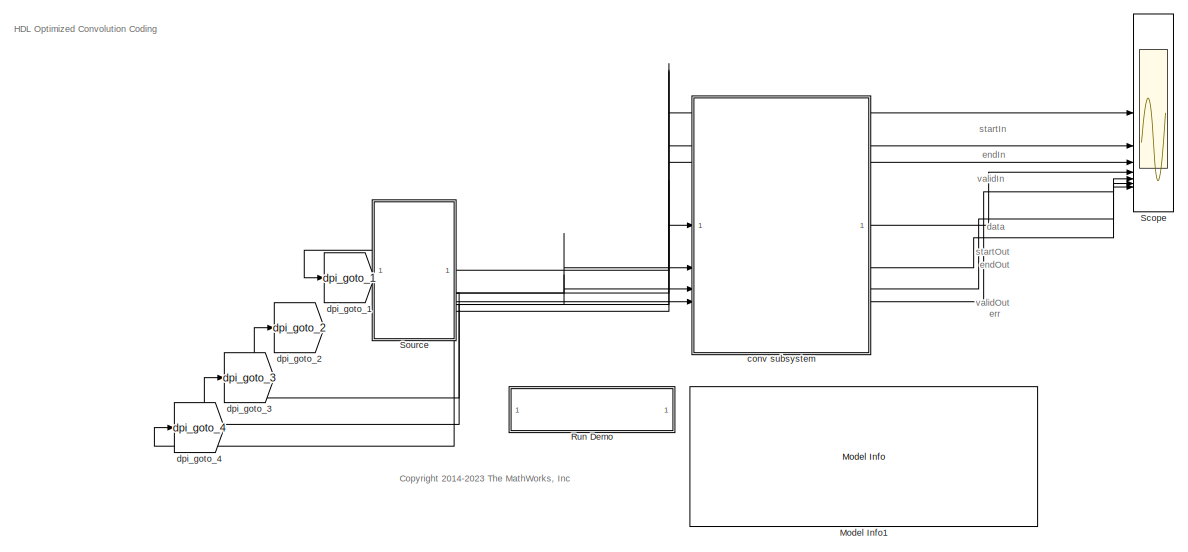
[diagram: root canvas - part 1/2, full width, middle band]
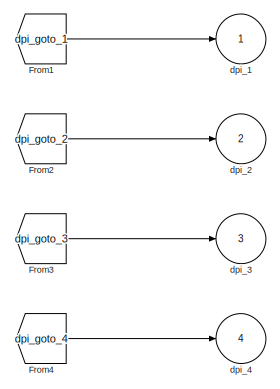
[diagram: root canvas - part 2/2, bottom right region]
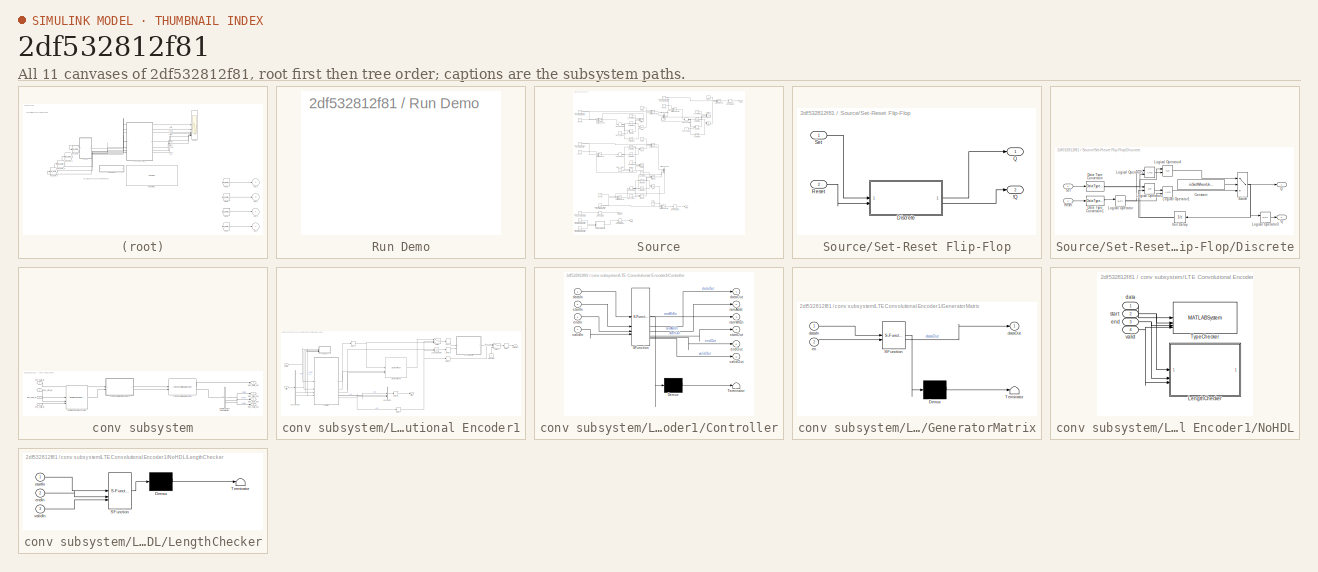
[diagram: thumbnail index - all 11 canvases of the model, root first then tree order]
MODEL slx_2df532812f81
KIND model
CONFIG AbsTol = auto
CONFIG EnableMultiTasking = off
CONFIG FixedStep = auto
CONFIG InitFcn = messagelength = 32;\nperiod =messagelength+672;\nN = 255;\nK = 223;\n\nmessage = [212 186 161 18 242 116 150 48 39 212 136 156 150 227 169 82 179 21 171 253 146 83 7 50 192 98 72 240 25 34 224 145 98 26 193 0];
CONFIG MaxStep = auto
CONFIG MinStep = auto
CONFIG RelTol = 1e-3
CONFIG SampleTimeConstraint = Unconstrained
CONFIG SolverName = VariableStepAuto
CONFIG StartTime = 0.0
CONFIG StopTime = 10.0
BLOCK [From] From1
  GotoTag = dpi_goto_1
  TagVisibility = global
BLOCK [From] From2
  GotoTag = dpi_goto_2
  TagVisibility = global
BLOCK [From] From3
  GotoTag = dpi_goto_3
  TagVisibility = global
BLOCK [From] From4
  GotoTag = dpi_goto_4
  TagVisibility = global
BLOCK [Reference] Model Info1  REF=simulink/Model-Wide
Utilities/Model Info
  SourceBlock = simulink/Model-Wide\nUtilities/Model Info
  SourceType = CMBlock
BLOCK [SubSystem] Run Demo
  OpenFcn = hdldialog(bdroot)
BLOCK [Scope] Scope
  Floating = off
  NumInputPorts = 7
  ScopeSpecificationString = Simulink.scopes.TimeScopeBlockCfg('CurrentConfiguration', extmgr.ConfigurationSet(extmgr.Configuration('Core','General UI',true,'FigureColor',[0.156862745098039 0.156862745098039 0.156862745098039]),extmgr.Configuration('Core','Source UI',true),extmgr.Configuration('Sources','WiredSimulink',true,'DataLoggingSaveFormat','StructureWithTime','DataLoggingDecimation','1'),extmgr.Configuration('Visuals'...<+11172ch>
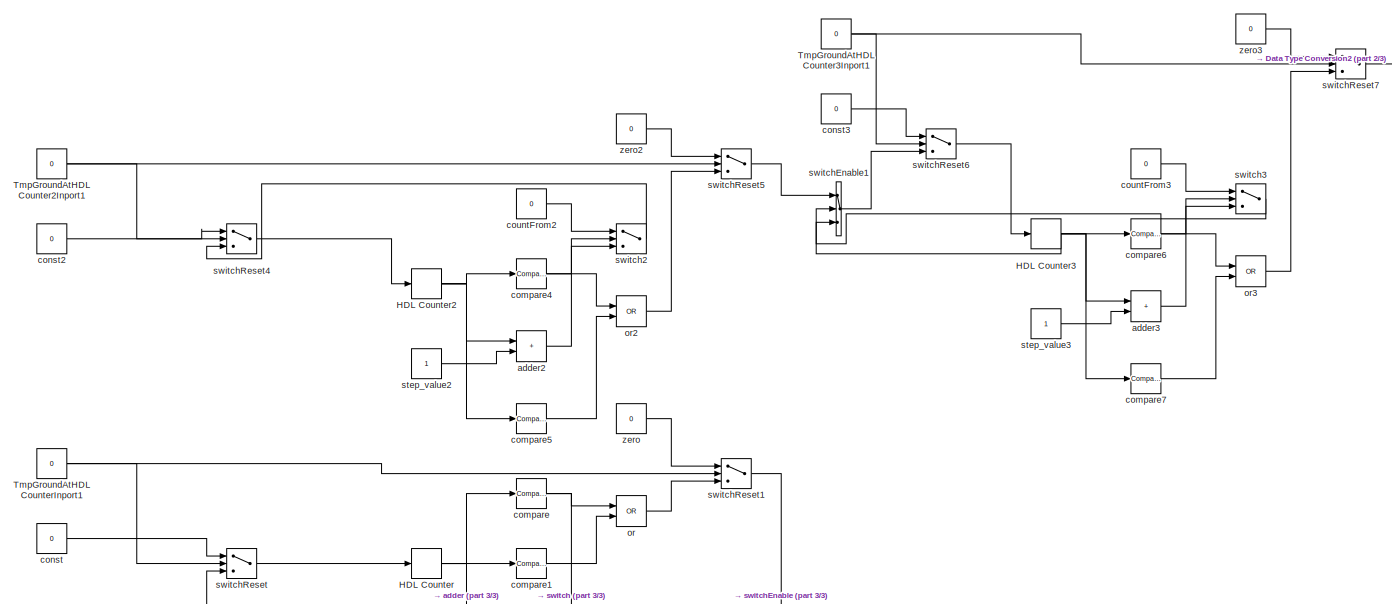
[diagram: Source - part 1/3, full width, top band]
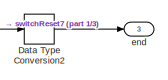
[diagram: Source - part 2/3, top right region]
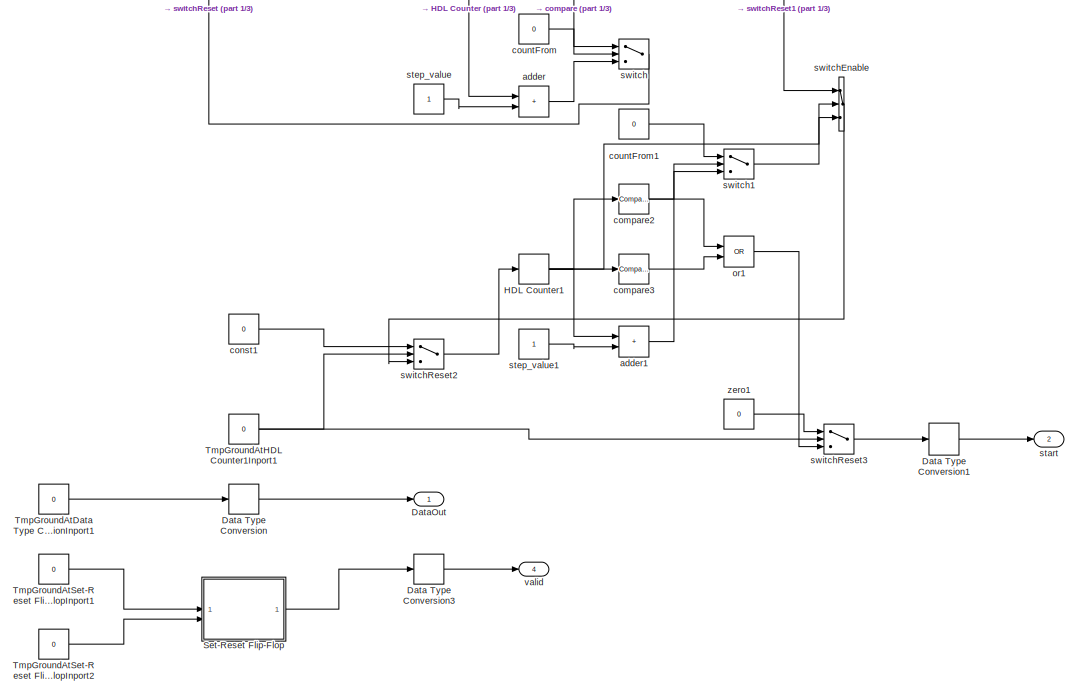
[diagram: Source - part 3/3, bottom center region]
BLOCK [SubSystem] Source
BLOCK [DataTypeConversion] Source/Data Type Conversion
  OutDataTypeStr = fixdt(1,4,-14)
BLOCK [DataTypeConversion] Source/Data Type Conversion1
  OutDataTypeStr = boolean
BLOCK [DataTypeConversion] Source/Data Type Conversion2
  OutDataTypeStr = boolean
BLOCK [DataTypeConversion] Source/Data Type Conversion3
  OutDataTypeStr = boolean
BLOCK [Outport] Source/DataOut
  VectorParamsAs1DForOutWhenUnconnected = off
BLOCK [Delay] Source/HDL Counter
  DelayLength = double(1)
  InitialCondition = 0
  InputPortMap = u0
  SampleTime = 42
BLOCK [Delay] Source/HDL Counter1
  DelayLength = double(1)
  InitialCondition = 0
  InputPortMap = u0
  SampleTime = 42
BLOCK [Delay] Source/HDL Counter2
  DelayLength = double(1)
  InitialCondition = 0
  InputPortMap = u0
  SampleTime = 42
BLOCK [Delay] Source/HDL Counter3
  DelayLength = double(1)
  InitialCondition = 0
  InputPortMap = u0
  SampleTime = 42
BLOCK [SubSystem] Source/Set-Reset Flip-Flop
BLOCK [Outport] Source/Set-Reset Flip-Flop/!Q
  Port = 2
  SampleTime = 42
BLOCK [SubSystem] Source/Set-Reset Flip-Flop/Discrete
BLOCK [Outport] Source/Set-Reset Flip-Flop/Discrete/!Q
  Port = 2
  SampleTime = 42
  VectorParamsAs1DForOutWhenUnconnected = off
BLOCK [Constant] Source/Set-Reset Flip-Flop/Discrete/Constant
  SampleTime = Ts
  Value = isSetWhenUndefinedState
BLOCK [DataTypeConversion] Source/Set-Reset Flip-Flop/Discrete/Data Type Conversion
  OutDataTypeStr = boolean
  RndMeth = Floor
  SaturateOnIntegerOverflow = off
BLOCK [DataTypeConversion] Source/Set-Reset Flip-Flop/Discrete/Data Type Conversion1
  OutDataTypeStr = boolean
  RndMeth = Floor
  SaturateOnIntegerOverflow = off
BLOCK [Logic] Source/Set-Reset Flip-Flop/Discrete/Logical Operator
  AllPortsSameDT = off
  Operator = NOT
  OutDataTypeStr = boolean
BLOCK [Logic] Source/Set-Reset Flip-Flop/Discrete/Logical Operator1
  AllPortsSameDT = off
  OutDataTypeStr = boolean
BLOCK [Logic] Source/Set-Reset Flip-Flop/Discrete/Logical Operator2
  AllPortsSameDT = off
  Operator = OR
  OutDataTypeStr = boolean
BLOCK [Logic] Source/Set-Reset Flip-Flop/Discrete/Logical Operator3
  AllPortsSameDT = off
  Operator = NOT
  OutDataTypeStr = boolean
BLOCK [Logic] Source/Set-Reset Flip-Flop/Discrete/Logical Operator4
  AllPortsSameDT = off
  Operator = OR
  OutDataTypeStr = boolean
BLOCK [Logic] Source/Set-Reset Flip-Flop/Discrete/Logical Operator5
  AllPortsSameDT = off
  OutDataTypeStr = boolean
BLOCK [Outport] Source/Set-Reset Flip-Flop/Discrete/Q
  SampleTime = 42
  VectorParamsAs1DForOutWhenUnconnected = off
BLOCK [Inport] Source/Set-Reset Flip-Flop/Discrete/Reset
  OutDataTypeStr = boolean
  Port = 2
  PortDimensions = 1
BLOCK [Inport] Source/Set-Reset Flip-Flop/Discrete/Set
  OutDataTypeStr = boolean
  PortDimensions = 1
BLOCK [Switch] Source/Set-Reset Flip-Flop/Discrete/Switch
  Criteria = u2 ~= 0
  InputSameDT = off
  SaturateOnIntegerOverflow = off
  Threshold = 1
BLOCK [UnitDelay] Source/Set-Reset Flip-Flop/Discrete/Unit Delay
  HasFrameUpgradeWarning = on
  InitialCondition = Q0
  SampleTime = -1
BLOCK [Outport] Source/Set-Reset Flip-Flop/Q
  SampleTime = 42
BLOCK [Inport] Source/Set-Reset Flip-Flop/Reset
  OutDataTypeStr = boolean
  Port = 2
BLOCK [Inport] Source/Set-Reset Flip-Flop/Set
  OutDataTypeStr = boolean
BLOCK [Constant] Source/TmpGroundAtData Type ConversionInport1
  OutDataTypeStr = fixdt(1, 4, -14)
  Value = 0
  VectorParams1D = off
BLOCK [Constant] Source/TmpGroundAtHDL Counter1Inport1
  OutDataTypeStr = boolean
  Value = 0
  VectorParams1D = off
BLOCK [Constant] Source/TmpGroundAtHDL Counter2Inport1
  OutDataTypeStr = boolean
  Value = 0
  VectorParams1D = off
BLOCK [Constant] Source/TmpGroundAtHDL Counter3Inport1
  OutDataTypeStr = boolean
  Value = 0
  VectorParams1D = off
BLOCK [Constant] Source/TmpGroundAtHDL CounterInport1
  OutDataTypeStr = boolean
  Value = 0
  VectorParams1D = off
BLOCK [Constant] Source/TmpGroundAtSet-Reset Flip-FlopInport1
  OutDataTypeStr = boolean
  Value = 0
  VectorParams1D = off
BLOCK [Constant] Source/TmpGroundAtSet-Reset Flip-FlopInport2
  OutDataTypeStr = boolean
  Value = 0
  VectorParams1D = off
BLOCK [Sum] Source/adder
  AccumDataTypeStr = uint8
  IconShape = rectangular
  OutDataTypeStr = uint8
  SampleTime = 42
BLOCK [Sum] Source/adder1
  AccumDataTypeStr = uint8
  IconShape = rectangular
  OutDataTypeStr = uint8
  SampleTime = 42
BLOCK [Sum] Source/adder2
  AccumDataTypeStr = uint8
  IconShape = rectangular
  OutDataTypeStr = uint8
  SampleTime = 42
BLOCK [Sum] Source/adder3
  AccumDataTypeStr = uint8
  IconShape = rectangular
  OutDataTypeStr = uint8
  SampleTime = 42
BLOCK [Reference] Source/compare  REF=simulink/Logic and Bit
Operations/Compare
To Constant
  SourceBlock = simulink/Logic and Bit\nOperations/Compare\nTo Constant
  SourceType = Compare To Constant
BLOCK [Reference] Source/compare1  REF=simulink/Logic and Bit
Operations/Compare
To Constant
  SourceBlock = simulink/Logic and Bit\nOperations/Compare\nTo Constant
  SourceType = Compare To Constant
BLOCK [Reference] Source/compare2  REF=simulink/Logic and Bit
Operations/Compare
To Constant
  SourceBlock = simulink/Logic and Bit\nOperations/Compare\nTo Constant
  SourceType = Compare To Constant
BLOCK [Reference] Source/compare3  REF=simulink/Logic and Bit
Operations/Compare
To Constant
  SourceBlock = simulink/Logic and Bit\nOperations/Compare\nTo Constant
  SourceType = Compare To Constant
BLOCK [Reference] Source/compare4  REF=simulink/Logic and Bit
Operations/Compare
To Constant
  SourceBlock = simulink/Logic and Bit\nOperations/Compare\nTo Constant
  SourceType = Compare To Constant
BLOCK [Reference] Source/compare5  REF=simulink/Logic and Bit
Operations/Compare
To Constant
  SourceBlock = simulink/Logic and Bit\nOperations/Compare\nTo Constant
  SourceType = Compare To Constant
BLOCK [Reference] Source/compare6  REF=simulink/Logic and Bit
Operations/Compare
To Constant
  SourceBlock = simulink/Logic and Bit\nOperations/Compare\nTo Constant
  SourceType = Compare To Constant
BLOCK [Reference] Source/compare7  REF=simulink/Logic and Bit
Operations/Compare
To Constant
  SourceBlock = simulink/Logic and Bit\nOperations/Compare\nTo Constant
  SourceType = Compare To Constant
BLOCK [Constant] Source/const
  OutDataTypeStr = uint8
  SampleTime = 42
  Value = 0
  VectorParams1D = off
BLOCK [Constant] Source/const1
  OutDataTypeStr = uint8
  SampleTime = 42
  Value = 0
  VectorParams1D = off
BLOCK [Constant] Source/const2
  OutDataTypeStr = uint8
  SampleTime = 42
  Value = 0
  VectorParams1D = off
BLOCK [Constant] Source/const3
  OutDataTypeStr = uint8
  SampleTime = 42
  Value = 0
  VectorParams1D = off
BLOCK [Constant] Source/countFrom
  OutDataTypeStr = uint8
  SampleTime = 42
  Value = 0
  VectorParams1D = off
BLOCK [Constant] Source/countFrom1
  OutDataTypeStr = uint8
  SampleTime = 42
  Value = 0
  VectorParams1D = off
BLOCK [Constant] Source/countFrom2
  OutDataTypeStr = uint8
  SampleTime = 42
  Value = 0
  VectorParams1D = off
BLOCK [Constant] Source/countFrom3
  OutDataTypeStr = uint8
  SampleTime = 42
  Value = 0
  VectorParams1D = off
BLOCK [Outport] Source/end
  Port = 3
  SampleTime = 42
  VectorParamsAs1DForOutWhenUnconnected = off
BLOCK [Logic] Source/or
  AllPortsSameDT = off
  Operator = OR
  OutDataTypeStr = boolean
  SampleTime = 42
BLOCK [Logic] Source/or1
  AllPortsSameDT = off
  Operator = OR
  OutDataTypeStr = boolean
  SampleTime = 42
BLOCK [Logic] Source/or2
  AllPortsSameDT = off
  Operator = OR
  OutDataTypeStr = boolean
  SampleTime = 42
BLOCK [Logic] Source/or3
  AllPortsSameDT = off
  Operator = OR
  OutDataTypeStr = boolean
  SampleTime = 42
BLOCK [Outport] Source/start
  Port = 2
  SampleTime = 42
  VectorParamsAs1DForOutWhenUnconnected = off
BLOCK [Constant] Source/step_value
  OutDataTypeStr = uint8
  SampleTime = 42
  VectorParams1D = off
BLOCK [Constant] Source/step_value1
  OutDataTypeStr = uint8
  SampleTime = 42
  VectorParams1D = off
BLOCK [Constant] Source/step_value2
  OutDataTypeStr = uint8
  SampleTime = 42
  VectorParams1D = off
BLOCK [Constant] Source/step_value3
  OutDataTypeStr = uint8
  SampleTime = 42
  VectorParams1D = off
BLOCK [Switch] Source/switch
  Criteria = u2 ~= 0
  InputSameDT = off
  OutDataTypeStr = uint8
  SampleTime = 42
  SaturateOnIntegerOverflow = off
  Threshold = double(0)
BLOCK [Switch] Source/switch1
  Criteria = u2 ~= 0
  InputSameDT = off
  OutDataTypeStr = uint8
  SampleTime = 42
  SaturateOnIntegerOverflow = off
  Threshold = double(0)
BLOCK [Switch] Source/switch2
  Criteria = u2 ~= 0
  InputSameDT = off
  OutDataTypeStr = uint8
  SampleTime = 42
  SaturateOnIntegerOverflow = off
  Threshold = double(0)
BLOCK [Switch] Source/switch3
  Criteria = u2 ~= 0
  InputSameDT = off
  OutDataTypeStr = uint8
  SampleTime = 42
  SaturateOnIntegerOverflow = off
  Threshold = double(0)
BLOCK [MultiPortSwitch] Source/switchEnable
  DataPortOrder = Zero-based contiguous
  DiagnosticForDefault = None
  InputSameDT = off
  Inputs = 2
  OutDataTypeStr = uint8
  SampleTime = 42
  SaturateOnIntegerOverflow = off
  zeroidx = on
BLOCK [MultiPortSwitch] Source/switchEnable1
  DataPortOrder = Zero-based contiguous
  DiagnosticForDefault = None
  InputSameDT = off
  Inputs = 2
  OutDataTypeStr = uint8
  SampleTime = 42
  SaturateOnIntegerOverflow = off
  zeroidx = on
BLOCK [Switch] Source/switchReset
  Criteria = u2 ~= 0
  InputSameDT = off
  OutDataTypeStr = uint8
  SampleTime = 42
  SaturateOnIntegerOverflow = off
  Threshold = double(0)
BLOCK [Switch] Source/switchReset1
  Criteria = u2 ~= 0
  InputSameDT = off
  OutDataTypeStr = boolean
  SampleTime = 42
  SaturateOnIntegerOverflow = off
  Threshold = double(0)
BLOCK [Switch] Source/switchReset2
  Criteria = u2 ~= 0
  InputSameDT = off
  OutDataTypeStr = uint8
  SampleTime = 42
  SaturateOnIntegerOverflow = off
  Threshold = double(0)
BLOCK [Switch] Source/switchReset3
  Criteria = u2 ~= 0
  InputSameDT = off
  OutDataTypeStr = boolean
  SampleTime = 42
  SaturateOnIntegerOverflow = off
  Threshold = double(0)
BLOCK [Switch] Source/switchReset4
  Criteria = u2 ~= 0
  InputSameDT = off
  OutDataTypeStr = uint8
  SampleTime = 42
  SaturateOnIntegerOverflow = off
  Threshold = double(0)
BLOCK [Switch] Source/switchReset5
  Criteria = u2 ~= 0
  InputSameDT = off
  OutDataTypeStr = boolean
  SampleTime = 42
  SaturateOnIntegerOverflow = off
  Threshold = double(0)
BLOCK [Switch] Source/switchReset6
  Criteria = u2 ~= 0
  InputSameDT = off
  OutDataTypeStr = uint8
  SampleTime = 42
  SaturateOnIntegerOverflow = off
  Threshold = double(0)
BLOCK [Switch] Source/switchReset7
  Criteria = u2 ~= 0
  InputSameDT = off
  OutDataTypeStr = boolean
  SampleTime = 42
  SaturateOnIntegerOverflow = off
  Threshold = double(0)
BLOCK [Outport] Source/valid
  Port = 4
  SampleTime = 42
  VectorParamsAs1DForOutWhenUnconnected = off
BLOCK [Constant] Source/zero
  OutDataTypeStr = boolean
  SampleTime = 42
  Value = 0
  VectorParams1D = off
BLOCK [Constant] Source/zero1
  OutDataTypeStr = boolean
  SampleTime = 42
  Value = 0
  VectorParams1D = off
BLOCK [Constant] Source/zero2
  OutDataTypeStr = boolean
  SampleTime = 42
  Value = 0
  VectorParams1D = off
BLOCK [Constant] Source/zero3
  OutDataTypeStr = boolean
  SampleTime = 42
  Value = 0
  VectorParams1D = off
BLOCK [SubSystem] conv subsystem
BLOCK [Reference] conv subsystem/LTE Convolutional Decoder  REF=whdledac/LTE Convolutional Decoder
  SourceBlock = whdledac/LTE Convolutional Decoder
  SourceType = LTE Convolutional Decoder
BLOCK [SubSystem] conv subsystem/LTE Convolutional Encoder1
  AncestorBlock = whdledac/LTE Convolutional Encoder
BLOCK [BusCreator] conv subsystem/LTE Convolutional Encoder1/Bus Creator
  DisplayOption = bar
  InheritFromInputs = off
  Inputs = 3
  NonVirtualBus = on
  OutDataTypeStr = Bus: samplecontrol
BLOCK [BusSelector] conv subsystem/LTE Convolutional Encoder1/Bus Selector1
  OutputSignals = start,end,valid
BLOCK [Constant] conv subsystem/LTE Convolutional Encoder1/Constant
  OutDataTypeStr = boolean
  SampleTime = -1
  Value = 0
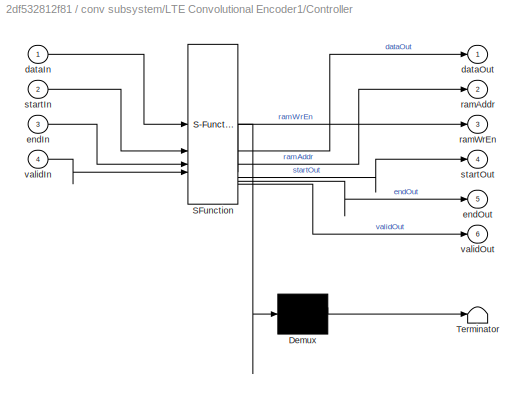
BLOCK [SubSystem] conv subsystem/LTE Convolutional Encoder1/Controller
  ErrorFcn = Stateflow.Translate.translate
  PermitHierarchicalResolution = ExplicitOnly
  SFBlockType = MATLAB Function
  TreatAsAtomicUnit = on
BLOCK [Demux] conv subsystem/LTE Convolutional Encoder1/Controller/ Demux 
  Outputs = 1
BLOCK [S-Function] conv subsystem/LTE Convolutional Encoder1/Controller/ SFunction 
  EnableBusSupport = on
  FunctionName = sf_sfun
  Parameters = BuffSize
  PortCounts = [4 7]
  SFcnIsStateOwnerBlock = off
  SFunctionDeploymentMode = off
  Tag = Stateflow S-Function 1
BLOCK [Terminator] conv subsystem/LTE Convolutional Encoder1/Controller/ Terminator 
BLOCK [Inport] conv subsystem/LTE Convolutional Encoder1/Controller/dataIn
BLOCK [Outport] conv subsystem/LTE Convolutional Encoder1/Controller/dataOut
  VectorParamsAs1DForOutWhenUnconnected = off
BLOCK [Inport] conv subsystem/LTE Convolutional Encoder1/Controller/endIn
  Port = 3
BLOCK [Outport] conv subsystem/LTE Convolutional Encoder1/Controller/endOut
  Port = 5
  VectorParamsAs1DForOutWhenUnconnected = off
BLOCK [Outport] conv subsystem/LTE Convolutional Encoder1/Controller/ramAddr
  Port = 2
  VectorParamsAs1DForOutWhenUnconnected = off
BLOCK [Outport] conv subsystem/LTE Convolutional Encoder1/Controller/ramWrEn
  Port = 3
  VectorParamsAs1DForOutWhenUnconnected = off
BLOCK [Inport] conv subsystem/LTE Convolutional Encoder1/Controller/startIn
  Port = 2
BLOCK [Outport] conv subsystem/LTE Convolutional Encoder1/Controller/startOut
  Port = 4
  VectorParamsAs1DForOutWhenUnconnected = off
BLOCK [Inport] conv subsystem/LTE Convolutional Encoder1/Controller/validIn
  Port = 4
BLOCK [Outport] conv subsystem/LTE Convolutional Encoder1/Controller/validOut
  Port = 6
  VectorParamsAs1DForOutWhenUnconnected = off
BLOCK [Delay] conv subsystem/LTE Convolutional Encoder1/Delay
  DelayLength = 1
  InputPortMap = u0
BLOCK [Delay] conv subsystem/LTE Convolutional Encoder1/Delay1
  DelayLength = 1
  InputPortMap = u0
BLOCK [Delay] conv subsystem/LTE Convolutional Encoder1/Delay2
  DelayLength = 1
  InitialCondition = 0
  InputPortMap = u0
  UseCircularBuffer = on
  UserDataPersistent = on
BLOCK [Delay] conv subsystem/LTE Convolutional Encoder1/Delay3
  DelayLength = 1
  InputPortMap = u0
BLOCK [Delay] conv subsystem/LTE Convolutional Encoder1/Delay4
  DelayLength = 1
  InitialCondition = 0
  InputPortMap = u0
  UseCircularBuffer = on
  UserDataPersistent = on
BLOCK [Delay] conv subsystem/LTE Convolutional Encoder1/Delay6
  DelayLength = 3
  InitialCondition = 0
  InputPortMap = u0
  UseCircularBuffer = on
  UserDataPersistent = on
BLOCK [Delay] conv subsystem/LTE Convolutional Encoder1/Delay7
  DelayLength = 1
  InitialCondition = 0
  InputPortMap = u0
  UseCircularBuffer = on
  UserDataPersistent = on
BLOCK [SubSystem] conv subsystem/LTE Convolutional Encoder1/GeneratorMatrix
  ErrorFcn = Stateflow.Translate.translate
  PermitHierarchicalResolution = ExplicitOnly
  SFBlockType = MATLAB Function
  TreatAsAtomicUnit = on
BLOCK [Demux] conv subsystem/LTE Convolutional Encoder1/GeneratorMatrix/ Demux 
  Outputs = 1
BLOCK [S-Function] conv subsystem/LTE Convolutional Encoder1/GeneratorMatrix/ SFunction 
  EnableBusSupport = on
  FunctionName = sf_sfun
  PortCounts = [2 2]
  SFcnIsStateOwnerBlock = off
  SFunctionDeploymentMode = off
  Tag = Stateflow S-Function 2
BLOCK [Terminator] conv subsystem/LTE Convolutional Encoder1/GeneratorMatrix/ Terminator 
BLOCK [Inport] conv subsystem/LTE Convolutional Encoder1/GeneratorMatrix/dataIn
BLOCK [Outport] conv subsystem/LTE Convolutional Encoder1/GeneratorMatrix/dataOut
  VectorParamsAs1DForOutWhenUnconnected = off
BLOCK [Inport] conv subsystem/LTE Convolutional Encoder1/GeneratorMatrix/en
  Port = 2
BLOCK [Logic] conv subsystem/LTE Convolutional Encoder1/Logical Operator
  AllPortsSameDT = off
  IconShape = distinctive
  Operator = OR
  OutDataTypeStr = boolean
BLOCK [SubSystem] conv subsystem/LTE Convolutional Encoder1/NoHDL
BLOCK [SubSystem] conv subsystem/LTE Convolutional Encoder1/NoHDL/LengthChecker
  Commented = on
  ErrorFcn = Stateflow.Translate.translate
  PermitHierarchicalResolution = ExplicitOnly
  SFBlockType = MATLAB Function
  TreatAsAtomicUnit = on
BLOCK [Demux] conv subsystem/LTE Convolutional Encoder1/NoHDL/LengthChecker/ Demux 
  Outputs = 1
BLOCK [S-Function] conv subsystem/LTE Convolutional Encoder1/NoHDL/LengthChecker/ SFunction 
  EnableBusSupport = off
  FunctionName = sf_sfun
  Parameters = BuffSize
  PortCounts = [3 1]
  SFcnIsStateOwnerBlock = off
  SFunctionDeploymentMode = off
  Tag = Stateflow S-Function 4
BLOCK [Terminator] conv subsystem/LTE Convolutional Encoder1/NoHDL/LengthChecker/ Terminator 
BLOCK [Inport] conv subsystem/LTE Convolutional Encoder1/NoHDL/LengthChecker/endIn
  Port = 2
BLOCK [Inport] conv subsystem/LTE Convolutional Encoder1/NoHDL/LengthChecker/startIn
BLOCK [Inport] conv subsystem/LTE Convolutional Encoder1/NoHDL/LengthChecker/validIn
  Port = 3
BLOCK [MATLABSystem] conv subsystem/LTE Convolutional Encoder1/NoHDL/TypeChecker
  Commented = on
  MaskDisplay = disp('ConvEncCheckType');
  MaskType = ltehdl.internal.ConvEncCheckType
  SimulateUsing = Code generation
  System = ltehdl.internal.ConvEncCheckType
BLOCK [Inport] conv subsystem/LTE Convolutional Encoder1/NoHDL/data
BLOCK [Inport] conv subsystem/LTE Convolutional Encoder1/NoHDL/end
  Port = 3
BLOCK [Inport] conv subsystem/LTE Convolutional Encoder1/NoHDL/start
  Port = 2
BLOCK [Inport] conv subsystem/LTE Convolutional Encoder1/NoHDL/valid
  Port = 4
BLOCK [Reference] conv subsystem/LTE Convolutional Encoder1/Single Port RAM  REF=hdlsllib/HDL RAMs/Single Port RAM
  SourceBlock = hdlsllib/HDL RAMs/Single Port RAM
  SourceType = Single-port RAM
BLOCK [Switch] conv subsystem/LTE Convolutional Encoder1/Switch
  Criteria = u2 ~= 0
  InputSameDT = off
  SaturateOnIntegerOverflow = off
BLOCK [Switch] conv subsystem/LTE Convolutional Encoder1/Switch1
  Criteria = u2 ~= 0
  InputSameDT = off
  SaturateOnIntegerOverflow = off
BLOCK [Inport] conv subsystem/LTE Convolutional Encoder1/ctrlIn
  Port = 2
BLOCK [Outport] conv subsystem/LTE Convolutional Encoder1/ctrlOut
  Port = 2
  VectorParamsAs1DForOutWhenUnconnected = off
BLOCK [Inport] conv subsystem/LTE Convolutional Encoder1/dataIn
BLOCK [Outport] conv subsystem/LTE Convolutional Encoder1/dataOut
  VectorParamsAs1DForOutWhenUnconnected = off
BLOCK [Reference] conv subsystem/Sample Control Bus Creator  REF=whdlutilities/Sample Control
Bus Creator
  SourceBlock = whdlutilities/Sample Control\nBus Creator
  SourceType = Sample Control Bus Creator
BLOCK [Reference] conv subsystem/Sample Control Bus Selector  REF=whdlutilities/Sample Control
Bus Selector
  SourceBlock = whdlutilities/Sample Control\nBus Selector
BLOCK [Outport] conv subsystem/dec_data_out
  VectorParamsAs1DForOutWhenUnconnected = off
BLOCK [Outport] conv subsystem/dec_end_out
  Port = 3
  VectorParamsAs1DForOutWhenUnconnected = off
BLOCK [Outport] conv subsystem/dec_start_out
  Port = 2
  VectorParamsAs1DForOutWhenUnconnected = off
BLOCK [Outport] conv subsystem/dec_valid_out
  Port = 4
  VectorParamsAs1DForOutWhenUnconnected = off
BLOCK [Inport] conv subsystem/enc_data_in
BLOCK [Inport] conv subsystem/enc_end_in
  OutDataTypeStr = boolean
  Port = 3
BLOCK [Inport] conv subsystem/enc_start_in
  OutDataTypeStr = boolean
  Port = 2
BLOCK [Inport] conv subsystem/enc_valid_in
  OutDataTypeStr = boolean
  Port = 4
BLOCK [Outport] dpi_1
BLOCK [Outport] dpi_2
  Port = 2
BLOCK [Outport] dpi_3
  Port = 3
BLOCK [Outport] dpi_4
  Port = 4
BLOCK [Goto] dpi_goto_1
  GotoTag = dpi_goto_1
  TagVisibility = global
BLOCK [Goto] dpi_goto_2
  GotoTag = dpi_goto_2
  TagVisibility = global
BLOCK [Goto] dpi_goto_3
  GotoTag = dpi_goto_3
  TagVisibility = global
BLOCK [Goto] dpi_goto_4
  GotoTag = dpi_goto_4
  TagVisibility = global
ANNOTATION (root): HDL Optimized Convolution Coding
ANNOTATION (root): <copyright redacted>
ANNOTATION (root): data
ANNOTATION (root): endIn
ANNOTATION (root): endOut
ANNOTATION (root): err
ANNOTATION (root): startIn
ANNOTATION (root): startOut
ANNOTATION (root): validIn
ANNOTATION (root): validOut
LINE From1:1 -> dpi_1:1
LINE From2:1 -> dpi_2:1
LINE From3:1 -> dpi_3:1
LINE From4:1 -> dpi_4:1
LINE Source/Data Type Conversion1:1 -> Source/start:1
LINE Source/Data Type Conversion2:1 -> Source/end:1
LINE Source/Data Type Conversion3:1 -> Source/valid:1
LINE Source/Data Type Conversion:1 -> Source/DataOut:1
NET Source/HDL Counter1:1 -> Source/adder1:1, Source/compare2:1, Source/compare3:1, Source/switchEnable:2
NET Source/HDL Counter2:1 -> Source/adder2:1, Source/compare4:1, Source/compare5:1
NET Source/HDL Counter3:1 -> Source/adder3:1, Source/compare6:1, Source/compare7:1, Source/switchEnable1:2
NET Source/HDL Counter:1 -> Source/adder:1, Source/compare1:1, Source/compare:1
LINE Source/Set-Reset Flip-Flop/Discrete/Constant:1 -> Source/Set-Reset Flip-Flop/Discrete/Switch:2
LINE Source/Set-Reset Flip-Flop/Discrete/Data Type Conversion1:1 -> Source/Set-Reset Flip-Flop/Discrete/Logical Operator:1
NET Source/Set-Reset Flip-Flop/Discrete/Data Type Conversion:1 -> Source/Set-Reset Flip-Flop/Discrete/Logical Operator2:1, Source/Set-Reset Flip-Flop/Discrete/Logical Operator4:1
LINE Source/Set-Reset Flip-Flop/Discrete/Logical Operator1:1 -> Source/Set-Reset Flip-Flop/Discrete/Switch:3
LINE Source/Set-Reset Flip-Flop/Discrete/Logical Operator2:1 -> Source/Set-Reset Flip-Flop/Discrete/Logical Operator1:1
LINE Source/Set-Reset Flip-Flop/Discrete/Logical Operator3:1 -> Source/Set-Reset Flip-Flop/Discrete/!Q:1
LINE Source/Set-Reset Flip-Flop/Discrete/Logical Operator4:1 -> Source/Set-Reset Flip-Flop/Discrete/Switch:1
LINE Source/Set-Reset Flip-Flop/Discrete/Logical Operator5:1 -> Source/Set-Reset Flip-Flop/Discrete/Logical Operator4:2
NET Source/Set-Reset Flip-Flop/Discrete/Logical Operator:1 -> Source/Set-Reset Flip-Flop/Discrete/Logical Operator1:2, Source/Set-Reset Flip-Flop/Discrete/Logical Operator5:1
LINE Source/Set-Reset Flip-Flop/Discrete/Reset:1 -> Source/Set-Reset Flip-Flop/Discrete/Data Type Conversion1:1
LINE Source/Set-Reset Flip-Flop/Discrete/Set:1 -> Source/Set-Reset Flip-Flop/Discrete/Data Type Conversion:1
NET Source/Set-Reset Flip-Flop/Discrete/Switch:1 -> Source/Set-Reset Flip-Flop/Discrete/Logical Operator3:1, Source/Set-Reset Flip-Flop/Discrete/Q:1, Source/Set-Reset Flip-Flop/Discrete/Unit Delay:1
NET Source/Set-Reset Flip-Flop/Discrete/Unit Delay:1 -> Source/Set-Reset Flip-Flop/Discrete/Logical Operator2:2, Source/Set-Reset Flip-Flop/Discrete/Logical Operator5:2
LINE Source/Set-Reset Flip-Flop/Discrete:1 -> Source/Set-Reset Flip-Flop/Q:1
LINE Source/Set-Reset Flip-Flop/Discrete:2 -> Source/Set-Reset Flip-Flop/!Q:1
LINE Source/Set-Reset Flip-Flop/Reset:1 -> Source/Set-Reset Flip-Flop/Discrete:2
LINE Source/Set-Reset Flip-Flop/Set:1 -> Source/Set-Reset Flip-Flop/Discrete:1
LINE Source/Set-Reset Flip-Flop:1 -> Source/Data Type Conversion3:1
LINE Source/TmpGroundAtData Type ConversionInport1:1 -> Source/Data Type Conversion:1
NET Source/TmpGroundAtHDL Counter1Inport1:1 -> Source/switchReset2:2, Source/switchReset3:2
NET Source/TmpGroundAtHDL Counter2Inport1:1 -> Source/switchReset4:2, Source/switchReset5:2
NET Source/TmpGroundAtHDL Counter3Inport1:1 -> Source/switchReset6:2, Source/switchReset7:2
NET Source/TmpGroundAtHDL CounterInport1:1 -> Source/switchReset1:2, Source/switchReset:2
LINE Source/TmpGroundAtSet-Reset Flip-FlopInport1:1 -> Source/Set-Reset Flip-Flop:1
LINE Source/TmpGroundAtSet-Reset Flip-FlopInport2:1 -> Source/Set-Reset Flip-Flop:2
LINE Source/adder1:1 -> Source/switch1:3
LINE Source/adder2:1 -> Source/switch2:3
LINE Source/adder3:1 -> Source/switch3:3
LINE Source/adder:1 -> Source/switch:3
LINE Source/compare1:1 -> Source/or:2
NET Source/compare2:1 -> Source/or1:1, Source/switch1:2
LINE Source/compare3:1 -> Source/or1:2
NET Source/compare4:1 -> Source/or2:1, Source/switch2:2
LINE Source/compare5:1 -> Source/or2:2
NET Source/compare6:1 -> Source/or3:1, Source/switch3:2
LINE Source/compare7:1 -> Source/or3:2
NET Source/compare:1 -> Source/or:1, Source/switch:2
LINE Source/const1:1 -> Source/switchReset2:1
LINE Source/const2:1 -> Source/switchReset4:1
LINE Source/const3:1 -> Source/switchReset6:1
LINE Source/const:1 -> Source/switchReset:1
LINE Source/countFrom1:1 -> Source/switch1:1
LINE Source/countFrom2:1 -> Source/switch2:1
LINE Source/countFrom3:1 -> Source/switch3:1
LINE Source/countFrom:1 -> Source/switch:1
LINE Source/or1:1 -> Source/switchReset3:3
LINE Source/or2:1 -> Source/switchReset5:3
LINE Source/or3:1 -> Source/switchReset7:3
LINE Source/or:1 -> Source/switchReset1:3
LINE Source/step_value1:1 -> Source/adder1:2
LINE Source/step_value2:1 -> Source/adder2:2
LINE Source/step_value3:1 -> Source/adder3:2
LINE Source/step_value:1 -> Source/adder:2
LINE Source/switch1:1 -> Source/switchEnable:3
LINE Source/switch2:1 -> Source/switchReset4:3
LINE Source/switch3:1 -> Source/switchEnable1:3
LINE Source/switch:1 -> Source/switchReset:3
LINE Source/switchEnable1:1 -> Source/switchReset6:3
LINE Source/switchEnable:1 -> Source/switchReset2:3
LINE Source/switchReset1:1 -> Source/switchEnable:1
LINE Source/switchReset2:1 -> Source/HDL Counter1:1
LINE Source/switchReset3:1 -> Source/Data Type Conversion1:1
LINE Source/switchReset4:1 -> Source/HDL Counter2:1
LINE Source/switchReset5:1 -> Source/switchEnable1:1
LINE Source/switchReset6:1 -> Source/HDL Counter3:1
LINE Source/switchReset7:1 -> Source/Data Type Conversion2:1
LINE Source/switchReset:1 -> Source/HDL Counter:1
LINE Source/zero1:1 -> Source/switchReset3:1
LINE Source/zero2:1 -> Source/switchReset5:1
LINE Source/zero3:1 -> Source/switchReset7:1
LINE Source/zero:1 -> Source/switchReset1:1
NET Source:1 -> conv subsystem:1, dpi_goto_1:1
NET Source:2 -> Scope:1, conv subsystem:2, dpi_goto_2:1
NET Source:3 -> Scope:2, conv subsystem:3, dpi_goto_3:1
NET Source:4 -> Scope:3, conv subsystem:4, dpi_goto_4:1
LINE conv subsystem/LTE Convolutional Decoder:1 -> conv subsystem/dec_data_out:1
LINE conv subsystem/LTE Convolutional Decoder:2 -> conv subsystem/Sample Control Bus Selector:1
LINE conv subsystem/LTE Convolutional Encoder1:1 -> conv subsystem/LTE Convolutional Decoder:1
LINE conv subsystem/LTE Convolutional Encoder1:2 -> conv subsystem/LTE Convolutional Decoder:2
LINE conv subsystem/Sample Control Bus Creator:1 -> conv subsystem/LTE Convolutional Encoder1:2
LINE conv subsystem/Sample Control Bus Selector:1 -> conv subsystem/dec_start_out:1
LINE conv subsystem/Sample Control Bus Selector:2 -> conv subsystem/dec_end_out:1
LINE conv subsystem/Sample Control Bus Selector:3 -> conv subsystem/dec_valid_out:1
LINE conv subsystem/enc_data_in:1 -> conv subsystem/LTE Convolutional Encoder1:1
LINE conv subsystem/enc_end_in:1 -> conv subsystem/Sample Control Bus Creator:2
LINE conv subsystem/enc_start_in:1 -> conv subsystem/Sample Control Bus Creator:1
LINE conv subsystem/enc_valid_in:1 -> conv subsystem/Sample Control Bus Creator:3
LINE conv subsystem:1 -> Scope:4
LINE conv subsystem:2 -> Scope:5
LINE conv subsystem:3 -> Scope:6
LINE conv subsystem:4 -> Scope:7
note: NET lines group one-source signal fan-out (src -> all destinations, sorted); 1:1 wires keep LINE
CHART conv subsystem/LTE Convolutional Encoder1/Controller states=1 transitions=1
  STATE_LABEL 'eML_blk_kernel()'
  STATE_LABEL 'SCRIPT:\nfunction [dataOut, ramAddr, ramWrEn, startOut, endOut, validOut] = Controller(dataIn,startIn,endIn,validIn, BuffSize)\n    %#codegen\n    \n    % states\n    ENC_IDLE          = 0;        % waiting for start\n    ENC_STREAM_IN     = 1;        % streaming input and writing into RAM\n    ENC_STREAM_IN_END = 2;        % last input bit\n    ENC_STREAM_OUT    = 3;        % stream data out of RAM throu...<+3381ch>'
CHART conv subsystem/LTE Convolutional Encoder1/GeneratorMatrix states=1 transitions=1
  STATE_LABEL 'eML_blk_kernel()'
  STATE_LABEL "SCRIPT:\nfunction dataOut  = FunctionGenerator(dataIn,en)\n    %#codegen\n    \n    G_value = [...\n        1 0 1 1 0 1 1;\n        1 1 1 1 0 0 1;\n        1 1 1 0 1 0 1];\n    \n    localFimath = fimath(...\n        'OverflowAction', 'Wrap', ...\n        'ProductMode', 'SpecifyPrecision', ...\n        'ProductWordLength', 1, ...\n        'ProductFractionLength', 0, ...\n        'SumMode', 'SpecifyPrecision', ....<+526ch>"
CHART conv subsystem/LTE Convolutional Encoder1/NoHDL/LengthChecker states=1 transitions=1
  STATE_LABEL 'eML_blk_kernel()'
  STATE_LABEL 'SCRIPT:\nfunction checkMsgLength(startIn,endIn,validIn, BuffSize)\n    % Check the length of frame if matches the LTE standard.\n    \n    WAIT_S = ufi(0,2,0);\n    COUNT_S = ufi(1,2,0);\n    RST_S = ufi(2,2,0);\n    \n    persistent lenState;\n    persistent lenCounter;\n    \n    if isempty(lenState)\n        lenState= WAIT_S;\n        lenCounter = ufi(0,17,0);\n    end\n    \n    nextLenState   = lenState;\n   ...<+1138ch>'
CHART  states=0 transitions=0
CHART  states=0 transitions=0
CHART  states=0 transitions=0
